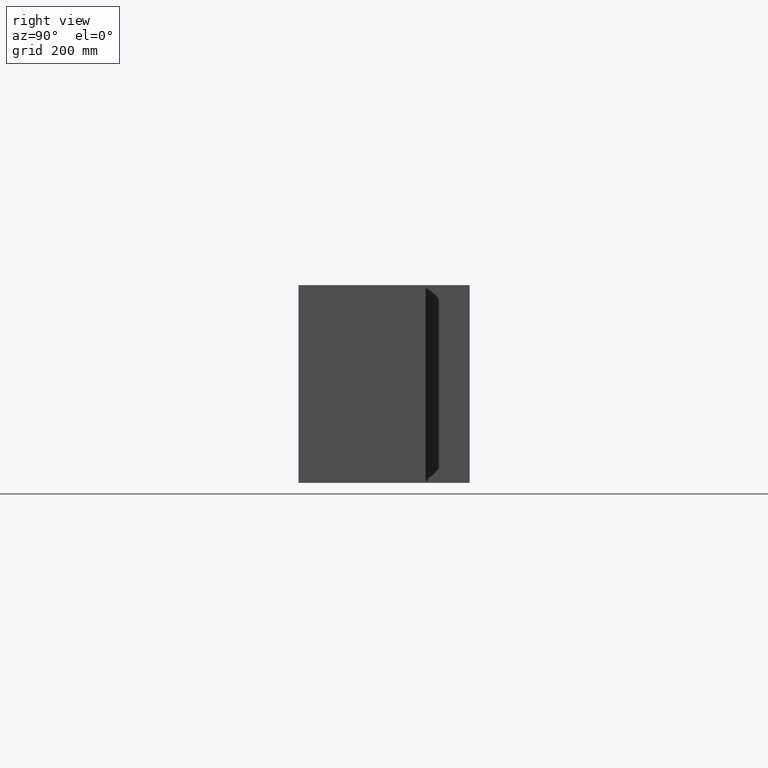
[diagram: clean part render]
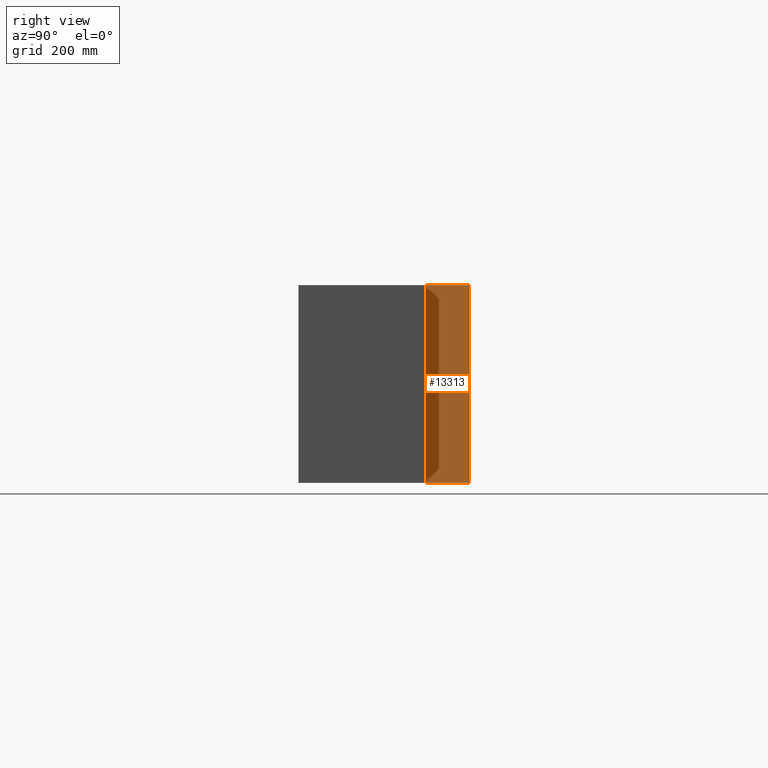
[diagram: same view with one face highlighted and labeled with its STEP entity id]
A machine part, right view. The second image highlights one B-rep face of the part: STEP entity #13313.
In plain terms, the highlighted planar face has unit normal (-1, 0, 0).
Its self-contained STEP definition (entity closure, byte-faithful):
#179 = CARTESIAN_POINT ( 'NONE',  ( 649.9999999999998863, 404.9999999999999432, -470.0000000000000000 ) ) ;
#301 = EDGE_CURVE ( 'NONE', #7373, #9498, #10601, .T. ) ;
#1098 = CARTESIAN_POINT ( 'NONE',  ( 650.0000000000001137, 404.9999999999999432, 0.0000000000000000000 ) ) ;
#1321 = DIRECTION ( 'NONE',  ( 2.362176648138631388E-16, 0.0000000000000000000, 1.000000000000000000 ) ) ;
#1542 = VERTEX_POINT ( 'NONE', #16061 ) ;
#1801 = VECTOR ( 'NONE', #4420, 1000.000000000000000 ) ;
#1945 = EDGE_LOOP ( 'NONE', ( #5827, #6133, #6730, #4628 ) ) ;
#2548 = PLANE ( 'NONE',  #6921 ) ;
#3158 = CARTESIAN_POINT ( 'NONE',  ( 650.0000000000001137, 300.0000000000000000, 0.0000000000000000000 ) ) ;
#3183 = CARTESIAN_POINT ( 'NONE',  ( 650.0000000000001137, 300.0000000000000000, 0.0000000000000000000 ) ) ;
#4016 = VECTOR ( 'NONE', #5177, 1000.000000000000000 ) ;
#4420 = DIRECTION ( 'NONE',  ( 2.362176648138631388E-16, -0.0000000000000000000, 1.000000000000000000 ) ) ;
#4628 = ORIENTED_EDGE ( 'NONE', *, *, #10927, .T. ) ;
#4659 = CARTESIAN_POINT ( 'NONE',  ( 650.0000000000001137, 403.9999999999999432, 0.0000000000000000000 ) ) ;
#5133 = EDGE_CURVE ( 'NONE', #9498, #7478, #12273, .T. ) ;
#5177 = DIRECTION ( 'NONE',  ( -0.0000000000000000000, -1.000000000000000000, -0.0000000000000000000 ) ) ;
#5480 = CARTESIAN_POINT ( 'NONE',  ( 649.9999999999998863, 403.9999999999999432, -470.0000000000000000 ) ) ;
#5827 = ORIENTED_EDGE ( 'NONE', *, *, #10591, .F. ) ;
#6100 = DIRECTION ( 'NONE',  ( -0.0000000000000000000, -1.000000000000000000, -0.0000000000000000000 ) ) ;
#6133 = ORIENTED_EDGE ( 'NONE', *, *, #301, .T. ) ;
#6617 = VECTOR ( 'NONE', #8145, 1000.000000000000000 ) ;
#6730 = ORIENTED_EDGE ( 'NONE', *, *, #5133, .T. ) ;
#6921 = AXIS2_PLACEMENT_3D ( 'NONE', #7546, #12494, #1321 ) ;
#7373 = VERTEX_POINT ( 'NONE', #5480 ) ;
#7478 = VERTEX_POINT ( 'NONE', #3183 ) ;
#7546 = CARTESIAN_POINT ( 'NONE',  ( 650.0000000000001137, 404.9999999999999432, 0.0000000000000000000 ) ) ;
#8145 = DIRECTION ( 'NONE',  ( -2.362176648138631388E-16, 0.0000000000000000000, -1.000000000000000000 ) ) ;
#9498 = VERTEX_POINT ( 'NONE', #4659 ) ;
#10591 = EDGE_CURVE ( 'NONE', #7373, #1542, #11356, .T. ) ;
#10601 = LINE ( 'NONE', #15575, #1801 ) ;
#10927 = EDGE_CURVE ( 'NONE', #7478, #1542, #14336, .T. ) ;
#11356 = LINE ( 'NONE', #179, #4016 ) ;
#12273 = LINE ( 'NONE', #1098, #16112 ) ;
#12494 = DIRECTION ( 'NONE',  ( -1.000000000000000000, 0.0000000000000000000, 2.362176648138631388E-16 ) ) ;
#13313 = ADVANCED_FACE ( 'NONE', ( #13715 ), #2548, .F. ) ;
#13715 = FACE_OUTER_BOUND ( 'NONE', #1945, .T. ) ;
#14336 = LINE ( 'NONE', #3158, #6617 ) ;
#15575 = CARTESIAN_POINT ( 'NONE',  ( 650.0000000000001137, 403.9999999999999432, 0.0000000000000000000 ) ) ;
#16061 = CARTESIAN_POINT ( 'NONE',  ( 649.9999999999998863, 300.0000000000000000, -470.0000000000000000 ) ) ;
#16112 = VECTOR ( 'NONE', #6100, 1000.000000000000000 ) ;